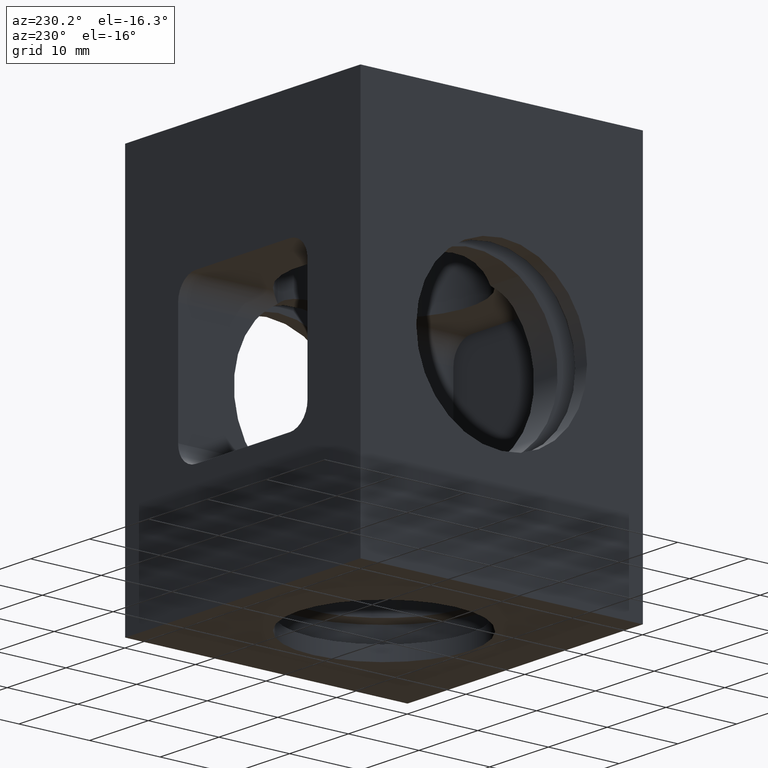
[diagram: clean part render]
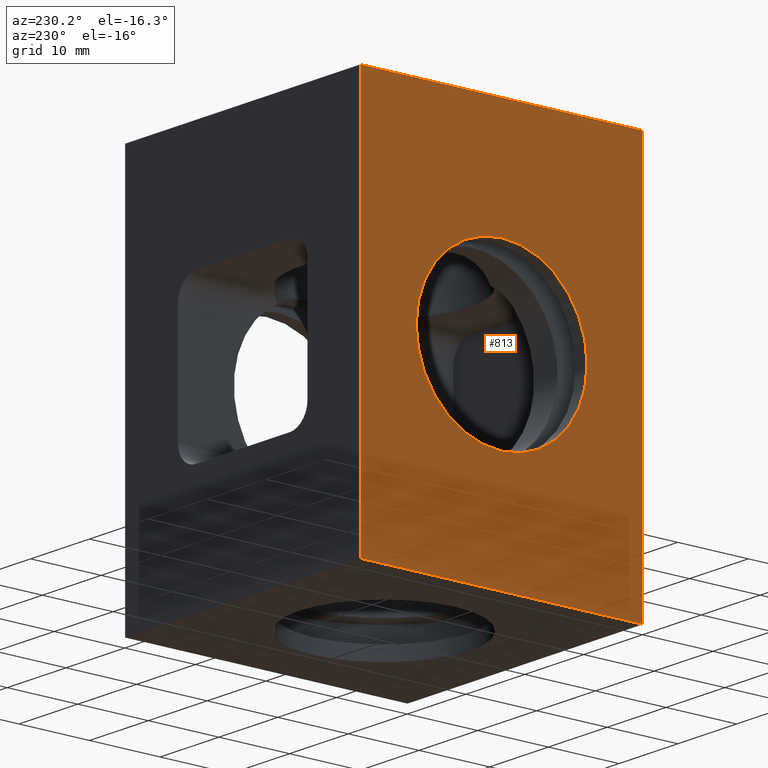
[diagram: same view with one face highlighted and labeled with its STEP entity id]
A machine part, auxiliary view. The second image highlights one B-rep face of the part: STEP entity #813.
In plain terms, the highlighted planar face has unit normal (-1, 0, -0).
Its self-contained STEP definition (entity closure, byte-faithful):
#112=FACE_BOUND('',#288,.T.);
#148=CIRCLE('',#884,12.1);
#207=FACE_OUTER_BOUND('',#287,.T.);
#287=EDGE_LOOP('',(#723,#724,#725,#726));
#288=EDGE_LOOP('',(#727));
#298=LINE('',#1169,#334);
#312=LINE('',#1272,#348);
#327=LINE('',#1461,#363);
#328=LINE('',#1462,#364);
#334=VECTOR('',#931,10.);
#348=VECTOR('',#1009,10.);
#363=VECTOR('',#1150,10.);
#364=VECTOR('',#1151,10.);
#367=VERTEX_POINT('',#1162);
#370=VERTEX_POINT('',#1167);
#402=VERTEX_POINT('',#1270);
#403=VERTEX_POINT('',#1271);
#420=VERTEX_POINT('',#1318);
#446=EDGE_CURVE('',#370,#367,#298,.T.);
#482=EDGE_CURVE('',#402,#403,#312,.T.);
#500=EDGE_CURVE('',#420,#420,#148,.T.);
#539=EDGE_CURVE('',#402,#367,#327,.T.);
#540=EDGE_CURVE('',#403,#370,#328,.T.);
#723=ORIENTED_EDGE('',*,*,#482,.F.);
#724=ORIENTED_EDGE('',*,*,#539,.T.);
#725=ORIENTED_EDGE('',*,*,#446,.F.);
#726=ORIENTED_EDGE('',*,*,#540,.F.);
#727=ORIENTED_EDGE('',*,*,#500,.T.);
#762=PLANE('',#920);
#813=ADVANCED_FACE('',(#207,#112),#762,.T.);
#884=AXIS2_PLACEMENT_3D('',#1319,#1065,#1066);
#920=AXIS2_PLACEMENT_3D('',#1460,#1148,#1149);
#931=DIRECTION('',(-1.18952466924124E-16,0.,1.));
#1009=DIRECTION('',(1.18952466924124E-16,0.,-1.));
#1065=DIRECTION('center_axis',(1.,0.,1.18952466924124E-16));
#1066=DIRECTION('ref_axis',(0.,0.,1.));
#1148=DIRECTION('center_axis',(-1.,0.,-1.18952466924124E-16));
#1149=DIRECTION('ref_axis',(0.,0.,1.));
#1150=DIRECTION('',(0.,1.,0.));
#1151=DIRECTION('',(0.,1.,0.));
#1162=CARTESIAN_POINT('',(-20.,49.95,28.));
#1167=CARTESIAN_POINT('',(-20.,49.95,-28.));
#1169=CARTESIAN_POINT('',(-20.,49.95,-28.));
#1270=CARTESIAN_POINT('',(-20.,9.95,28.));
#1271=CARTESIAN_POINT('',(-20.,9.95,-28.));
#1272=CARTESIAN_POINT('',(-20.,9.95,-14.));
#1318=CARTESIAN_POINT('',(-20.,29.95,-12.1));
#1319=CARTESIAN_POINT('Origin',(-20.,29.95,0.));
#1460=CARTESIAN_POINT('Origin',(-20.,9.95,-28.));
#1461=CARTESIAN_POINT('',(-20.,9.95,28.));
#1462=CARTESIAN_POINT('',(-20.,9.95,-28.));